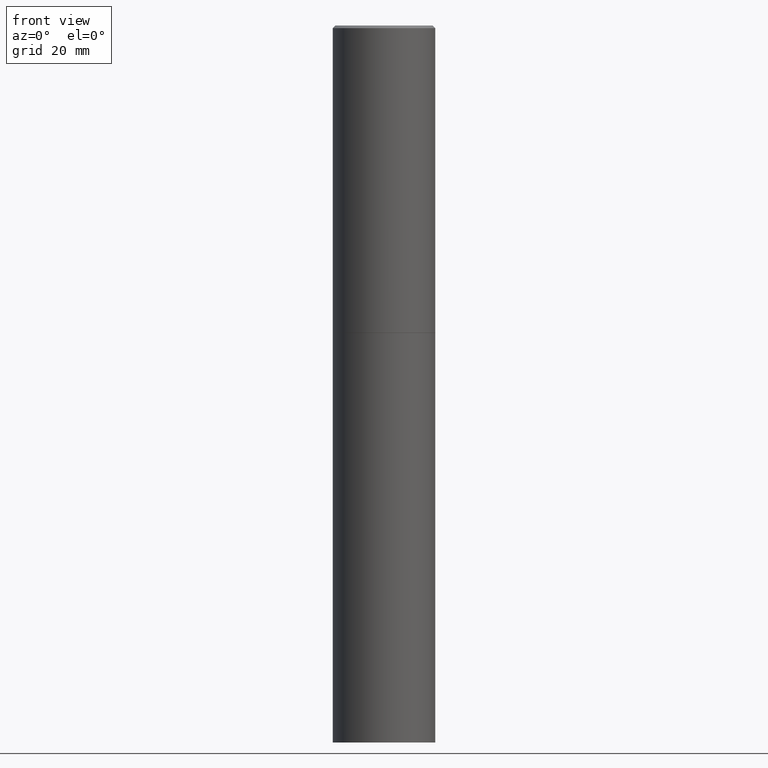
[diagram: clean part render]
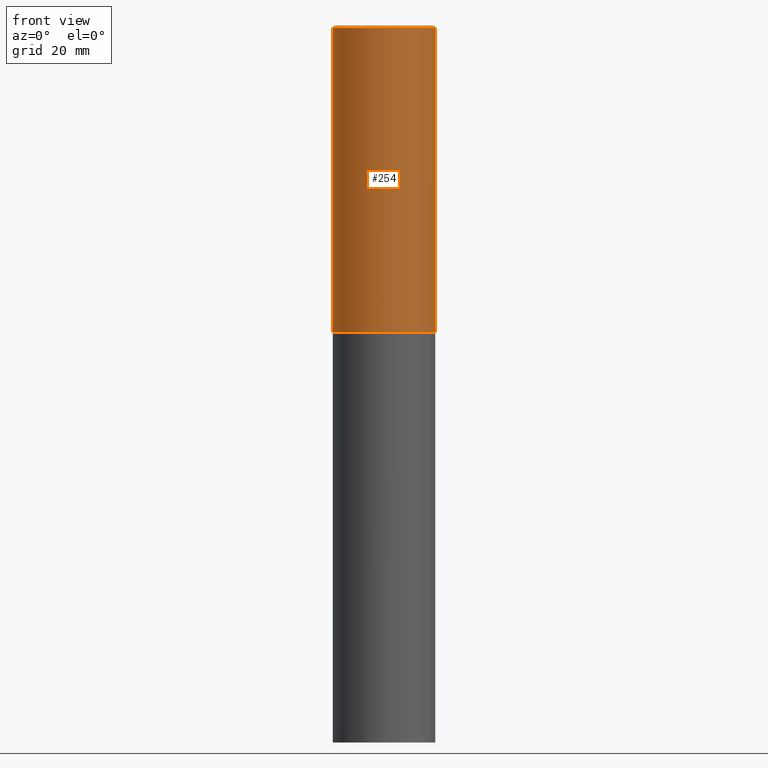
[diagram: same view with one face highlighted and labeled with its STEP entity id]
A machine part, front view. The second image highlights one B-rep face of the part: STEP entity #254.
In plain terms, the highlighted cylindrical surface (partial cylindrical patch) has radius 10 mm, axis along (-0, 0, 1).
Its self-contained STEP definition (entity closure, byte-faithful):
#14 = DIRECTION ( 'NONE',  ( -2.445468806185136597E-29, 3.491481338843145583E-15, 1.000000000000000000 ) ) ;
#16 = LINE ( 'NONE', #194, #40 ) ;
#31 = CYLINDRICAL_SURFACE ( 'NONE', #101, 0.3936999999999999389 ) ;
#33 = AXIS2_PLACEMENT_3D ( 'NONE', #358, #14, #197 ) ;
#40 = VECTOR ( 'NONE', #141, 39.37007874015748143 ) ;
#41 = ORIENTED_EDGE ( 'NONE', *, *, #291, .F. ) ;
#45 = VERTEX_POINT ( 'NONE', #365 ) ;
#52 = EDGE_CURVE ( 'NONE', #262, #64, #241, .T. ) ;
#64 = VERTEX_POINT ( 'NONE', #116 ) ;
#78 = DIRECTION ( 'NONE',  ( -2.445468806185136597E-29, 3.491481338843145583E-15, 1.000000000000000000 ) ) ;
#83 = EDGE_LOOP ( 'NONE', ( #41, #120, #249, #298 ) ) ;
#101 = AXIS2_PLACEMENT_3D ( 'NONE', #154, #329, #303 ) ;
#116 = CARTESIAN_POINT ( 'NONE',  ( 0.3937000000000001054, -1.099327814348151826E-14, -2.361199999999999743 ) ) ;
#120 = ORIENTED_EDGE ( 'NONE', *, *, #52, .T. ) ;
#130 = AXIS2_PLACEMENT_3D ( 'NONE', #228, #78, #258 ) ;
#138 = LINE ( 'NONE', #352, #251 ) ;
#139 = CARTESIAN_POINT ( 'NONE',  ( -0.3937000000000001609, -1.359550931339131820E-15, -2.361199999999999743 ) ) ;
#141 = DIRECTION ( 'NONE',  ( -2.445468806185136877E-29, 3.491481338843145188E-15, 1.000000000000000000 ) ) ;
#154 = CARTESIAN_POINT ( 'NONE',  ( 0.000000000000000000, 0.000000000000000000, 0.000000000000000000 ) ) ;
#167 = CARTESIAN_POINT ( 'NONE',  ( -0.3936999999999998279, 2.679362779428218735E-15, -0.02000000000000008715 ) ) ;
#180 = VERTEX_POINT ( 'NONE', #167 ) ;
#183 = FACE_OUTER_BOUND ( 'NONE', #83, .T. ) ;
#194 = CARTESIAN_POINT ( 'NONE',  ( 0.3936999999999999389, -2.749192406205082822E-15, 1.919750796630859611E-29 ) ) ;
#197 = DIRECTION ( 'NONE',  ( 1.000000000000000000, -6.982962677686266711E-15, 0.000000000000000000 ) ) ;
#228 = CARTESIAN_POINT ( 'NONE',  ( 5.774240945164344150E-29, -8.244085737276435042E-15, -2.361199999999999743 ) ) ;
#241 = CIRCLE ( 'NONE', #130, 0.3937000000000001054 ) ;
#249 = ORIENTED_EDGE ( 'NONE', *, *, #278, .T. ) ;
#250 = DIRECTION ( 'NONE',  ( -2.445468806185136877E-29, 3.491481338843145188E-15, 1.000000000000000000 ) ) ;
#251 = VECTOR ( 'NONE', #250, 39.37007874015748143 ) ;
#254 = ADVANCED_FACE ( 'NONE', ( #183 ), #31, .T. ) ;
#258 = DIRECTION ( 'NONE',  ( 1.000000000000000000, -6.982962677686263555E-15, 0.000000000000000000 ) ) ;
#262 = VERTEX_POINT ( 'NONE', #139 ) ;
#268 = EDGE_CURVE ( 'NONE', #180, #45, #335, .T. ) ;
#278 = EDGE_CURVE ( 'NONE', #64, #45, #16, .T. ) ;
#291 = EDGE_CURVE ( 'NONE', #262, #180, #138, .T. ) ;
#298 = ORIENTED_EDGE ( 'NONE', *, *, #268, .F. ) ;
#303 = DIRECTION ( 'NONE',  ( 1.000000000000000000, -6.982962677686266711E-15, 4.876176775795935793E-29 ) ) ;
#329 = DIRECTION ( 'NONE',  ( -2.445468806185136597E-29, 3.491481338843145583E-15, 1.000000000000000000 ) ) ;
#335 = CIRCLE ( 'NONE', #33, 0.3936999999999998279 ) ;
#352 = CARTESIAN_POINT ( 'NONE',  ( -0.3936999999999999389, 2.797406750687513998E-15, -1.936584745033356455E-29 ) ) ;
#358 = CARTESIAN_POINT ( 'NONE',  ( 4.890937612370294178E-31, -6.982962677686321191E-17, -0.02000000000000008715 ) ) ;
#365 = CARTESIAN_POINT ( 'NONE',  ( 0.3936999999999998279, -2.770807688499514156E-15, -0.02000000000000008715 ) ) ;